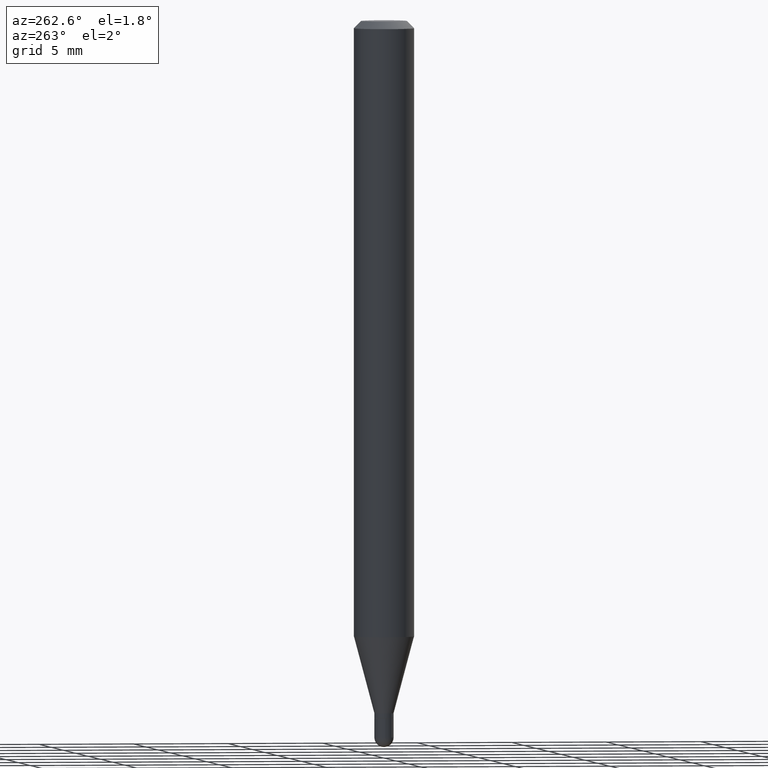
[diagram: clean part render]
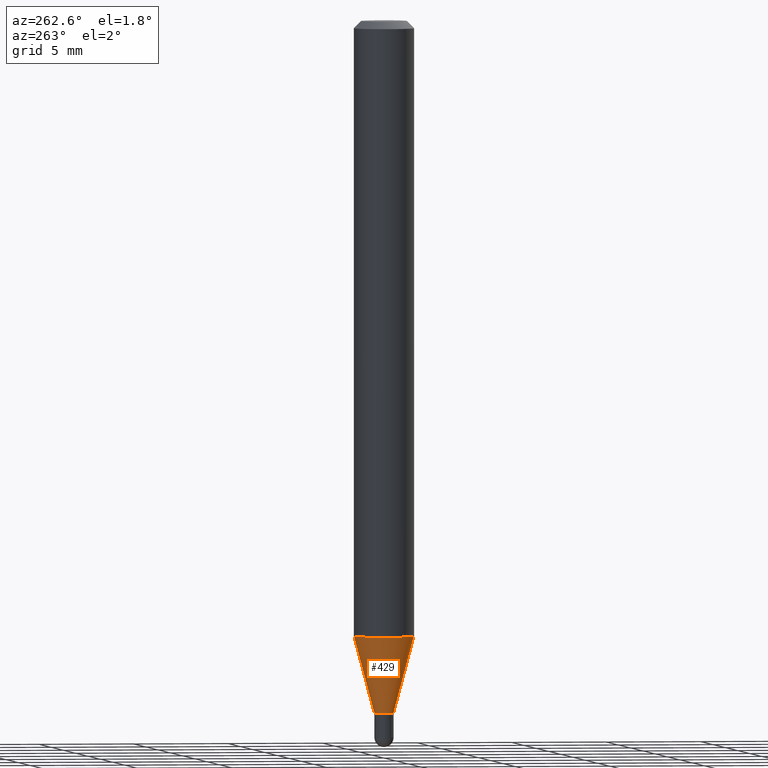
[diagram: same view with one face highlighted and labeled with its STEP entity id]
A machine part, auxiliary view. The second image highlights one B-rep face of the part: STEP entity #429.
In plain terms, the highlighted conical surface has half-angle 15 deg.
Its self-contained STEP definition (entity closure, byte-faithful):
#15 = CARTESIAN_POINT ( 'NONE',  ( 4.440892098500934804E-16, 0.06249999999999554523, -1.271387840678323444 ) ) ;
#18 = EDGE_CURVE ( 'NONE', #66, #390, #461, .T. ) ;
#19 = ORIENTED_EDGE ( 'NONE', *, *, #406, .T. ) ;
#20 = DIRECTION ( 'NONE',  ( -2.445483089663186682E-29, 3.491460884089612684E-15, 1.000000000000000000 ) ) ;
#37 = ORIENTED_EDGE ( 'NONE', *, *, #504, .T. ) ;
#58 = FACE_OUTER_BOUND ( 'NONE', #228, .T. ) ;
#66 = VERTEX_POINT ( 'NONE', #192 ) ;
#88 = CARTESIAN_POINT ( 'NONE',  ( -1.396592535536897664E-16, -0.02000000000000491315, -1.429999999999999938 ) ) ;
#90 = VECTOR ( 'NONE', #485, 39.37007874015748143 ) ;
#91 = AXIS2_PLACEMENT_3D ( 'NONE', #108, #421, #227 ) ;
#107 = CONICAL_SURFACE ( 'NONE', #241, 0.01999999999999992062, 0.2617993877991506846 ) ;
#108 = CARTESIAN_POINT ( 'NONE',  ( 3.497040818218357490E-29, -4.992789064248145932E-15, -1.429999999999999938 ) ) ;
#135 = CARTESIAN_POINT ( 'NONE',  ( 3.109157464782232884E-29, -4.439000914235523162E-15, -1.271387840678323222 ) ) ;
#175 = VERTEX_POINT ( 'NONE', #88 ) ;
#176 = DIRECTION ( 'NONE',  ( -6.982962677686265133E-15, -1.000000000000000000, 0.000000000000000000 ) ) ;
#182 = CARTESIAN_POINT ( 'NONE',  ( -4.364351673553605587E-16, -0.06250000000000445477, -1.271387840678323000 ) ) ;
#192 = CARTESIAN_POINT ( 'NONE',  ( 2.930988785010741768E-16, 0.01999999999999492462, -1.429999999999999938 ) ) ;
#213 = CARTESIAN_POINT ( 'NONE',  ( -1.396592535536897664E-16, -0.02000000000000491315, -1.429999999999999938 ) ) ;
#215 = CARTESIAN_POINT ( 'NONE',  ( 3.497040818218357490E-29, -4.992789064248145932E-15, -1.429999999999999938 ) ) ;
#227 = DIRECTION ( 'NONE',  ( -6.982962677686265133E-15, -1.000000000000000000, 0.000000000000000000 ) ) ;
#228 = EDGE_LOOP ( 'NONE', ( #411, #37, #19, #495 ) ) ;
#241 = AXIS2_PLACEMENT_3D ( 'NONE', #215, #20, #176 ) ;
#252 = DIRECTION ( 'NONE',  ( -6.982962677686265922E-15, -1.000000000000000000, 4.370956789862821150E-15 ) ) ;
#285 = EDGE_CURVE ( 'NONE', #390, #327, #393, .T. ) ;
#302 = DIRECTION ( 'NONE',  ( 1.839019923739603076E-15, 0.2588190451025253469, 0.9659258262890670910 ) ) ;
#307 = VECTOR ( 'NONE', #302, 39.37007874015748143 ) ;
#327 = VERTEX_POINT ( 'NONE', #182 ) ;
#328 = LINE ( 'NONE', #213, #90 ) ;
#351 = AXIS2_PLACEMENT_3D ( 'NONE', #135, #444, #252 ) ;
#385 = CARTESIAN_POINT ( 'NONE',  ( 1.421085471520544049E-16, 0.01999999999999492462, -1.429999999999999938 ) ) ;
#390 = VERTEX_POINT ( 'NONE', #15 ) ;
#393 = CIRCLE ( 'NONE', #351, 0.06250000000000000000 ) ;
#406 = EDGE_CURVE ( 'NONE', #175, #327, #328, .T. ) ;
#411 = ORIENTED_EDGE ( 'NONE', *, *, #18, .F. ) ;
#421 = DIRECTION ( 'NONE',  ( -2.445483089663186682E-29, 3.491460884089612684E-15, 1.000000000000000000 ) ) ;
#429 = ADVANCED_FACE ( 'NONE', ( #58 ), #107, .T. ) ;
#444 = DIRECTION ( 'NONE',  ( -2.445483089663186682E-29, 3.491460884089612684E-15, 1.000000000000000000 ) ) ;
#461 = LINE ( 'NONE', #385, #307 ) ;
#473 = CIRCLE ( 'NONE', #91, 0.01999999999999992062 ) ;
#485 = DIRECTION ( 'NONE',  ( -1.807323732225332900E-15, -0.2588190451025185745, 0.9659258262890689783 ) ) ;
#495 = ORIENTED_EDGE ( 'NONE', *, *, #285, .F. ) ;
#504 = EDGE_CURVE ( 'NONE', #66, #175, #473, .T. ) ;